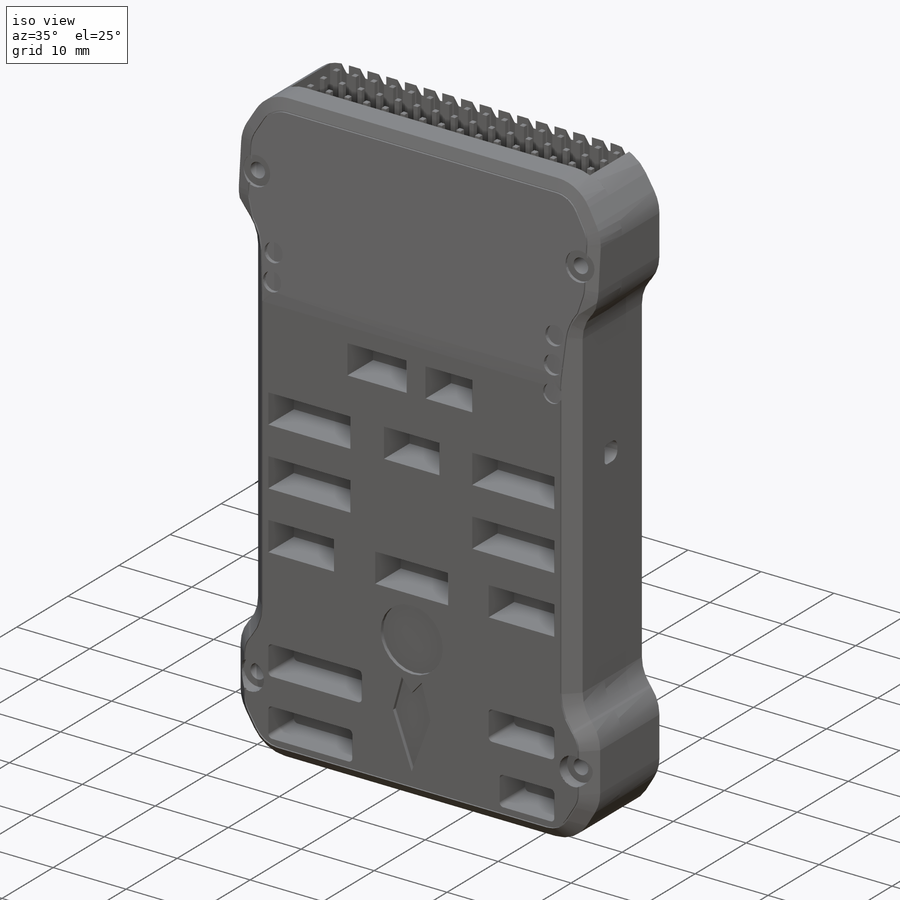
[diagram: iso view]
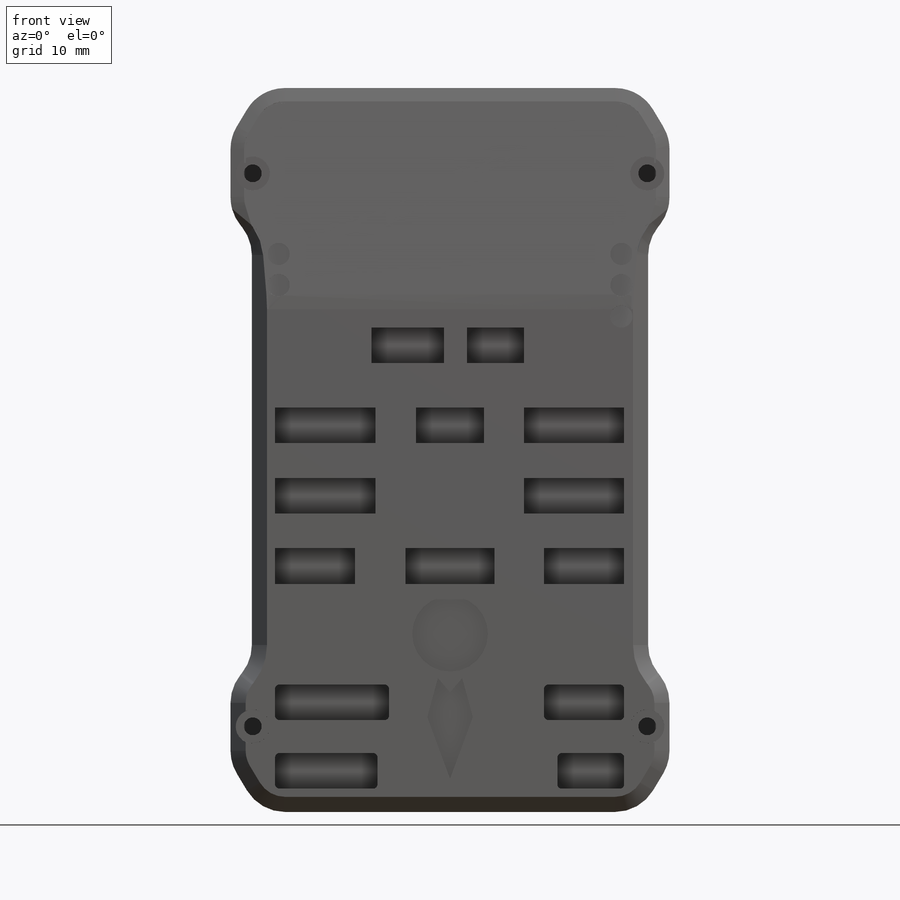
[diagram: front view]
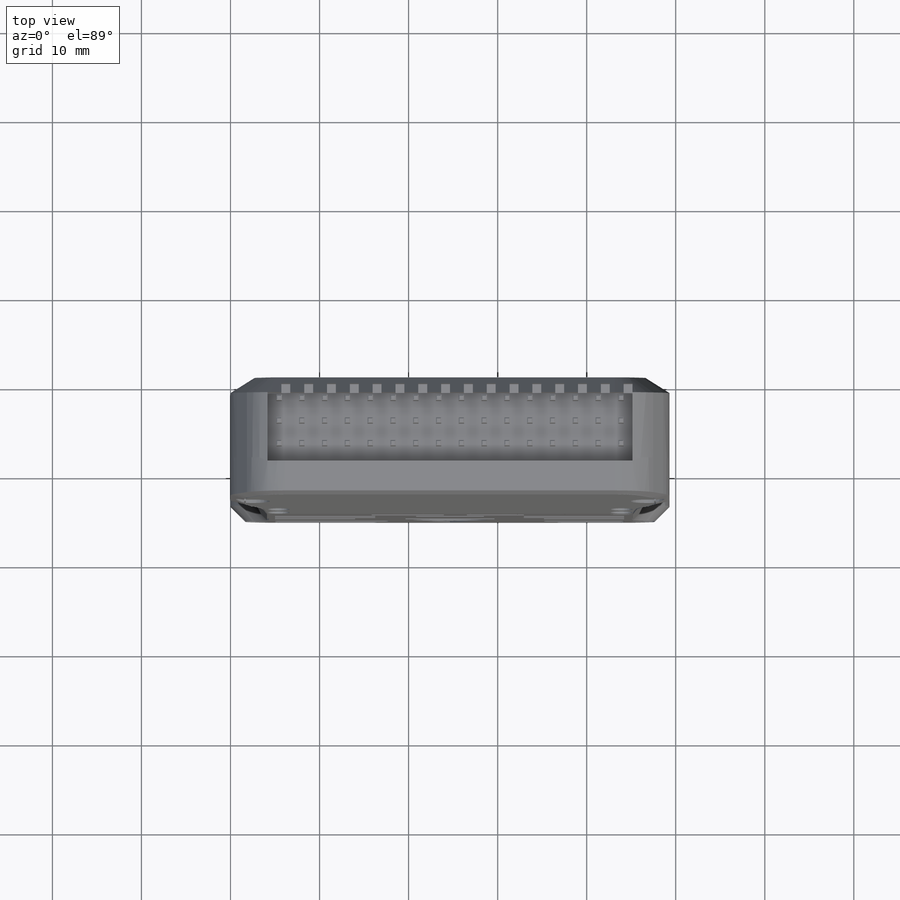
[diagram: top view]
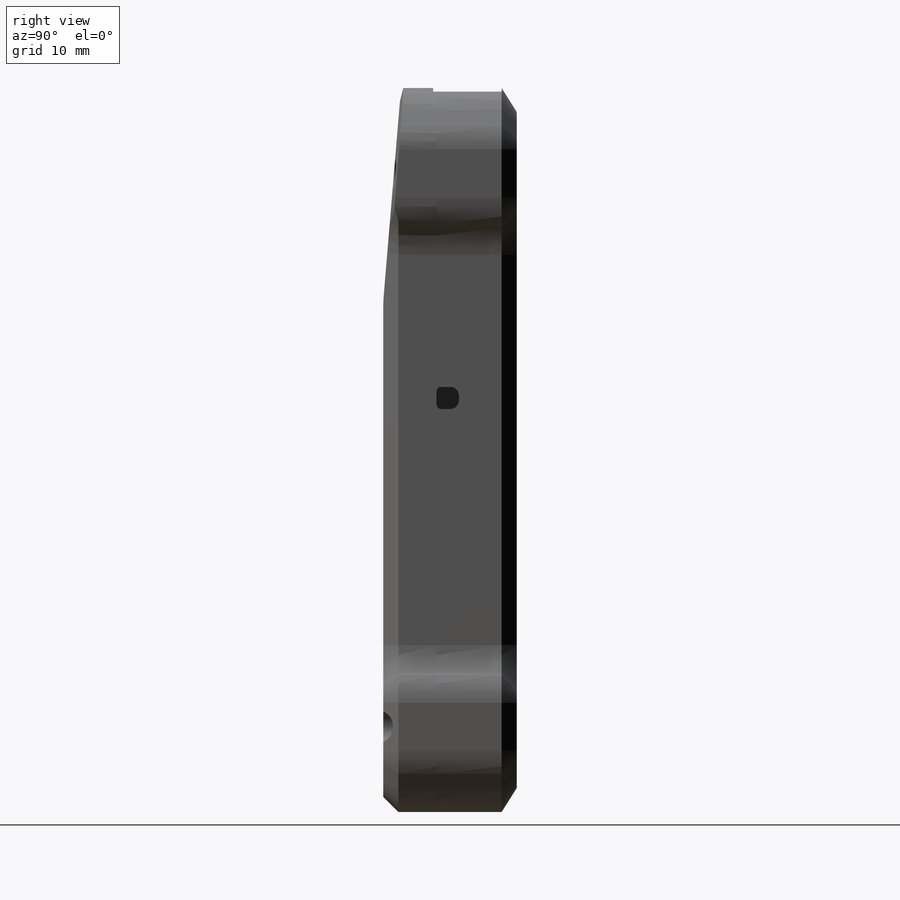
[diagram: right view]
SOLIDWORKS PART (.sldprt)
format: sldprt  version: not decoded by parser v0  size: 2,929,152 bytes
history: native  units: mm
features: sketch x19, cut_extrude x17, fillet x10, chamfer x9, plane x6, mirror x5, pattern_linear x3, extrude x2, material x1 (+10 scaffold rows collapsed)
feature tree (82):
  scaffold x10  (default folders/planes/origin — collapsed)
  material  "Material <not specified>"
  plane  "Plan de face"
  plane  "Plan de dessus"
  plane  "Plan de droite"
  sketch  "Esquisse1"  dims[D1=81.3mm D2=49.3mm D3=44.5mm D4=2.4mm D5=17.0mm D6=17.0mm]
  extrude  "Boss.-Extru.1"  Depth=15mm
  plane  "Plan1"
  plane  "Plan2"
  chamfer  "Chanfrein1"  Distance=5.5mm
  chamfer  "Chanfrein2"  Distance=2.4mm
  chamfer  "Chanfrein3"  Distance=3.3mm
  chamfer  "Chanfrein4"  Distance=3mm
  fillet  "Congé1"  Radius=5mm
  fillet  "Congé2"  Radius=5mm
  chamfer  "Chanfrein7"  Distance=1.7mm Angle=45deg
  chamfer  "Chanfrein8"  Distance=2mm
  fillet  "Congé3"  Radius=20mm
  chamfer  "Chanfrein9"  Distance=1.5mm
  sketch  "Esquisse5"  dims[D1=0.2mm D2=0.2mm D3=0.0mm D4=0.0mm]
  cut_extrude  "Enlèv. mat.-Extru.4"  Depth=0.2mm
  sketch  "Esquisse7"  dims[D1=0.0mm D2=0.2mm]
  cut_extrude  "Enlèv. mat.-Extru.5"  Depth=0.2mm
  sketch  "Esquisse8"  dims[D1=0.2mm D2=0.0mm]
  cut_extrude  "Enlèv. mat.-Extru.8"  Depth=0.2mm
  chamfer  "Chanfrein10"  Distance=2.7mm
  sketch  "Esquisse9"  dims[D1=10.0mm D2=10.0mm D3=4.3mm D4=4.3mm]
  cut_extrude  "Enlèv. mat.-Extru.9"  Depth=0.1mm
  fillet  "Congé4"  Radius=0.5mm
  mirror  "Symétrie8"
  mirror  "Symétrie9"
  sketch  "Esquisse10"  dims[D1=25.1mm D2=35.1mm D3=17.55mm D4=12.55mm]
  cut_extrude  "Enlèv. mat.-Extru.10"  Depth=0.1mm
  fillet  "Congé5"  Radius=0.5mm
  sketch  "Esquisse11"  dims[c1.D1=3.82mm c1.D2=3.82mm c1.D3=3.82mm c2.D2=9.6mm c2.D3=2.5mm]
  cut_extrude  "Enlèv. mat.-Extru.11"  Depth=1.5mm
  mirror  "Symétrie10"
  mirror  "Symétrie11"
  sketch  "Esquisse12"  dims[D1=7.5mm D2=11.5mm D3=4.0mm D4=4.0mm D5=5.0mm D6=5.1mm D7=2.6mm D8=2.6mm D9=12.8mm D10=0.0mm D11=4.0mm D12=3.7mm D13=0.0mm D14=0.0mm D15=4.0mm D16=9.0mm D17=4.0mm D18=4.0mm D19=4.0mm D20=9.0mm D21=0.0mm D22=10.0mm D23=5.0mm D24=9.0mm D25=0.0mm D26=25.6mm D27=25.6mm D28=25.6mm D29=4.0mm D30=4.0mm D31=11.25mm D32=0.0mm D33=11.25mm D34=0.0mm D35=3.9mm D36=3.9mm D37=4.0mm D38=4.0mm D39=11.25mm D40=11.25mm D41=3.9mm D42=3.9mm D43=2.6mm D44=16.7mm D45=7.6mm D46=4.0mm D47=3.8mm D48=3.9mm D49=4.0mm D50=4.0mm D51=6.4mm D52=8.1mm D53=5.0mm D54=5.0mm D55=2.6mm D56=0.0mm]
  cut_extrude  "Enlèv. mat.-Extru.12"  Depth=5mm
  fillet  "Congé6"  Radius=0.5mm
  sketch  "Esquisse13"  dims[D1=7.7mm D2=41.0mm D3=2.305mm D4=3.75mm]
  cut_extrude  "Enlèv. mat.-Extru.13"  Depth=6.6mm
  sketch  "Esquisse14"  dims[D1=0.0mm D2=0.0mm D3=1.0mm D4=1.0mm]
  cut_extrude  "Enlèv. mat.-Extru.14"  Depth=6.6mm
  pattern_linear  "Répétition linéaire1"  Count1=16 Count2=1 Spacing1=2.5625mm Spacing2=10mm
  sketch  "Esquisse16"  dims[D1=0.6mm D2=0.6mm D3=0.0mm D4=0.3mm]
  extrude  "Boss.-Extru.2"  Depth=6mm
  chamfer  "Chanfrein11"  Distance=0.1mm Angle=45deg
  pattern_linear  "Répétition linéaire2"  Count1=3 Count2=1 Spacing1=2.54mm Spacing2=10mm
  pattern_linear  "Répétition linéaire3"  Count1=16 Count2=1 Spacing1=2.56mm Spacing2=10mm
  sketch  "Esquisse17"  dims[D1=2.0mm D2=44.3mm]
  cut_extrude  "Enlèv. mat.-Extru.15"  Depth=6mm
  sketch  "Esquisse18"  dims[D1=6.0mm D2=8.35mm D3=3.34mm D4=24.52mm]
  cut_extrude  "Enlèv. mat.-Extru.16"  Depth=6mm
  fillet  "Congé7"  Radius=0.5mm
  sketch  "Esquisse19"  dims[D1=2.5mm D2=2.5mm D3=0.0mm D4=12.36mm]
  cut_extrude  "Enlèv. mat.-Extru.17"  Depth=6mm
  fillet  "Congé8"  Radius=0.5mm
  fillet  "Congé9"  Radius=1mm
  sketch  "Esquisse20"  dims[D1=12.0mm D2=3.6mm D3=2.4mm D4=12.52mm]
  cut_extrude  "Enlèv. mat.-Extru.18"  Depth=6mm
  fillet  "Congé10"  Radius=0.5mm
  mirror  "Symétrie12"
  sketch  "Esquisse21"  dims[c1.D1=8.5mm c1.D2=8.5mm c1.D3=8.5mm c2.D2=20.0mm c2.D3=20.35mm]
  cut_extrude  "Enlèv. mat.-Extru.19"  Depth=0.5mm
  plane  "Plan3"
  sketch  "Esquisse22"
  cut_extrude  "Enlèv. mat.-Extru.20"  Depth=0.5mm
  sketch  "Esquisse23"  dims[c1.D1=2.5mm c1.D2=2.5mm c1.D3=2.5mm c1.D4=2.5mm c1.D5=2.5mm c1.D6=2.5mm c1.D7=2.5mm c1.D8=2.5mm c1.D9=2.5mm c2.D8=2.5mm c2.D9=2.5mm c2.D4=3.5mm c2.D5=3.5mm c2.D6=3.0mm c2.D7=1.25mm c3.D8=4.25mm c3.D9=7.25mm c4.D8=0.0mm c4.D9=0.0mm]
  cut_extrude  "Enlèv. mat.-Extru.21"  Depth=0.5mm
  sketch  "Esquisse24"  dims[c1.D1=2.5mm c1.D2=2.5mm c1.D3=2.5mm c1.D4=2.5mm c1.D5=2.5mm c1.D6=2.5mm c2.D3=3.5mm c2.D4=4.75mm c2.D5=3.0mm c2.D6=8.25mm]
  cut_extrude  "Enlèv. mat.-Extru.22"  Depth=0.5mm
decode coverage: 59 of 65 modeling features carry decoded parameters
note: suppression state not decoded; provenance and decode notes live in map.json
